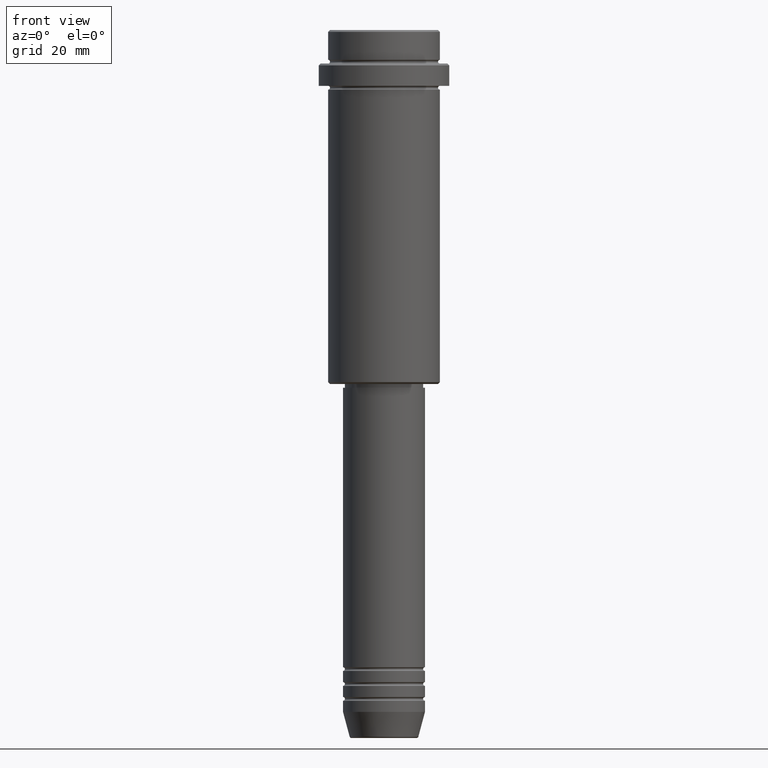
[diagram: clean part render]
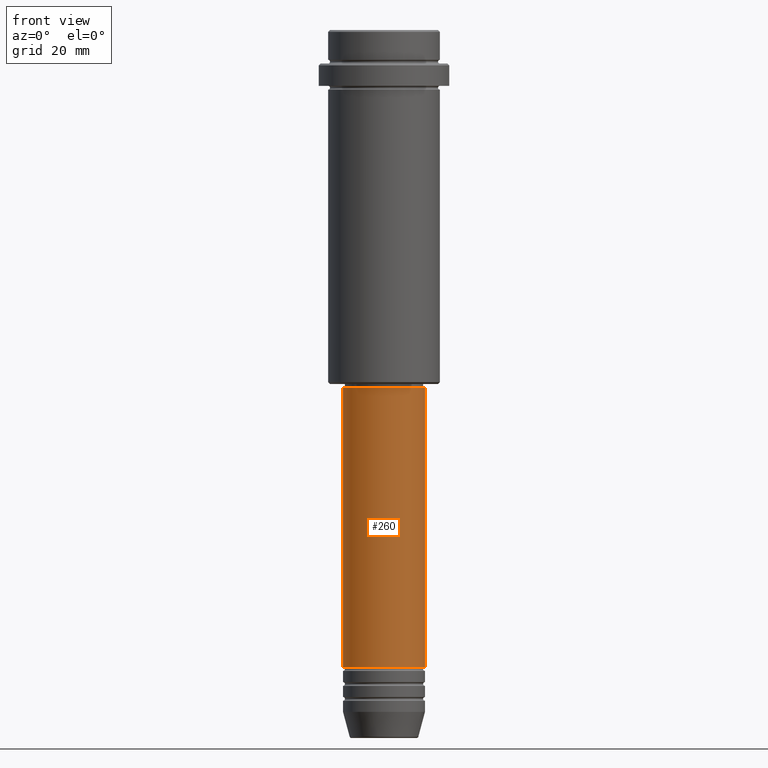
[diagram: same view with one face highlighted and labeled with its STEP entity id]
A machine part, front view. The second image highlights one B-rep face of the part: STEP entity #260.
In plain terms, the highlighted cylindrical surface (partial cylindrical patch) has radius 11 mm, axis along (-0, -0, 1).
Its self-contained STEP definition (entity closure, byte-faithful):
#36 = VERTEX_POINT ( 'NONE', #790 ) ;
#53 = CARTESIAN_POINT ( 'NONE',  ( -11.00000000000000000, 1.347111479062088405E-15, 0.000000000000000000 ) ) ;
#217 = CIRCLE ( 'NONE', #683, 10.99999999999999822 ) ;
#221 = DIRECTION ( 'NONE',  ( 1.000000000000000000, 0.000000000000000000, 0.000000000000000000 ) ) ;
#260 = ADVANCED_FACE ( 'NONE', ( #489 ), #1370, .T. ) ;
#277 = ORIENTED_EDGE ( 'NONE', *, *, #792, .F. ) ;
#378 = VERTEX_POINT ( 'NONE', #993 ) ;
#408 = EDGE_CURVE ( 'NONE', #36, #901, #1164, .T. ) ;
#489 = FACE_OUTER_BOUND ( 'NONE', #703, .T. ) ;
#501 = CIRCLE ( 'NONE', #1301, 11.00000000000000000 ) ;
#569 = LINE ( 'NONE', #1013, #826 ) ;
#636 = CARTESIAN_POINT ( 'NONE',  ( 0.000000000000000000, 0.000000000000000000, -170.9999999999998863 ) ) ;
#646 = ORIENTED_EDGE ( 'NONE', *, *, #408, .F. ) ;
#666 = CARTESIAN_POINT ( 'NONE',  ( 0.000000000000000000, 0.000000000000000000, -96.00000000000000000 ) ) ;
#683 = AXIS2_PLACEMENT_3D ( 'NONE', #666, #1311, #1098 ) ;
#698 = DIRECTION ( 'NONE',  ( -0.000000000000000000, -0.000000000000000000, 1.000000000000000000 ) ) ;
#703 = EDGE_LOOP ( 'NONE', ( #646, #1014, #1381, #277 ) ) ;
#781 = EDGE_CURVE ( 'NONE', #36, #378, #501, .T. ) ;
#790 = CARTESIAN_POINT ( 'NONE',  ( -11.00000000000000000, 1.347111479062088405E-15, -170.9999999999998863 ) ) ;
#792 = EDGE_CURVE ( 'NONE', #901, #961, #217, .T. ) ;
#794 = CARTESIAN_POINT ( 'NONE',  ( 10.99999999999999822, 0.000000000000000000, -96.00000000000000000 ) ) ;
#826 = VECTOR ( 'NONE', #1339, 1000.000000000000000 ) ;
#842 = AXIS2_PLACEMENT_3D ( 'NONE', #1240, #698, #934 ) ;
#901 = VERTEX_POINT ( 'NONE', #1217 ) ;
#907 = EDGE_CURVE ( 'NONE', #378, #961, #569, .T. ) ;
#912 = VECTOR ( 'NONE', #931, 1000.000000000000000 ) ;
#931 = DIRECTION ( 'NONE',  ( -0.000000000000000000, -0.000000000000000000, 1.000000000000000000 ) ) ;
#934 = DIRECTION ( 'NONE',  ( 1.000000000000000000, 0.000000000000000000, 0.000000000000000000 ) ) ;
#961 = VERTEX_POINT ( 'NONE', #794 ) ;
#993 = CARTESIAN_POINT ( 'NONE',  ( 11.00000000000000000, 0.000000000000000000, -170.9999999999998863 ) ) ;
#1013 = CARTESIAN_POINT ( 'NONE',  ( 11.00000000000000000, 0.000000000000000000, 0.000000000000000000 ) ) ;
#1014 = ORIENTED_EDGE ( 'NONE', *, *, #781, .T. ) ;
#1098 = DIRECTION ( 'NONE',  ( 1.000000000000000000, 0.000000000000000000, 0.000000000000000000 ) ) ;
#1164 = LINE ( 'NONE', #53, #912 ) ;
#1217 = CARTESIAN_POINT ( 'NONE',  ( -10.99999999999999822, 1.347111479062088207E-15, -96.00000000000000000 ) ) ;
#1240 = CARTESIAN_POINT ( 'NONE',  ( 0.000000000000000000, 0.000000000000000000, 0.000000000000000000 ) ) ;
#1301 = AXIS2_PLACEMENT_3D ( 'NONE', #636, #1317, #221 ) ;
#1311 = DIRECTION ( 'NONE',  ( -0.000000000000000000, -0.000000000000000000, 1.000000000000000000 ) ) ;
#1317 = DIRECTION ( 'NONE',  ( -0.000000000000000000, -0.000000000000000000, 1.000000000000000000 ) ) ;
#1339 = DIRECTION ( 'NONE',  ( -0.000000000000000000, -0.000000000000000000, 1.000000000000000000 ) ) ;
#1370 = CYLINDRICAL_SURFACE ( 'NONE', #842, 11.00000000000000000 ) ;
#1381 = ORIENTED_EDGE ( 'NONE', *, *, #907, .T. ) ;